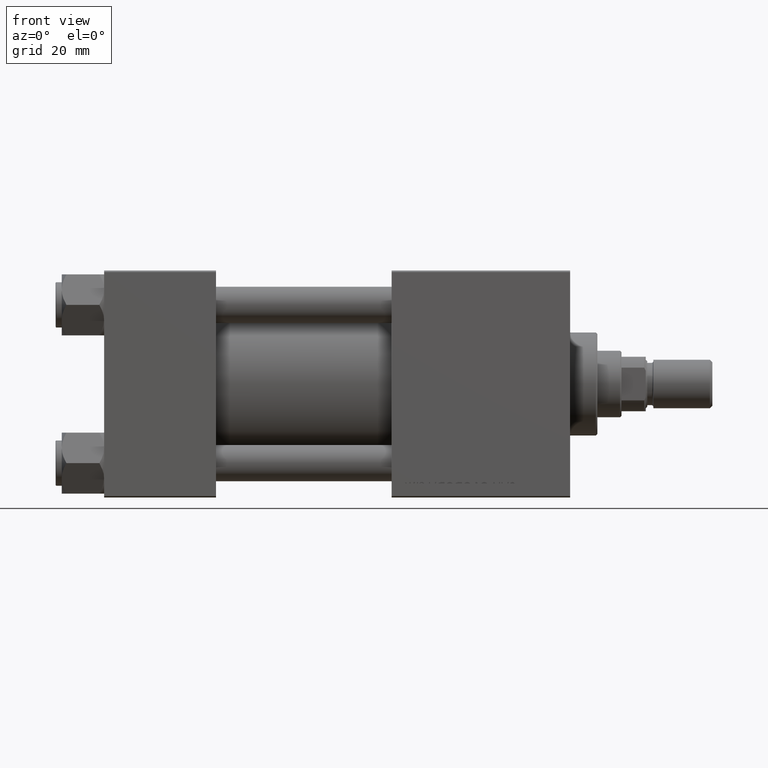
[diagram: clean part render]
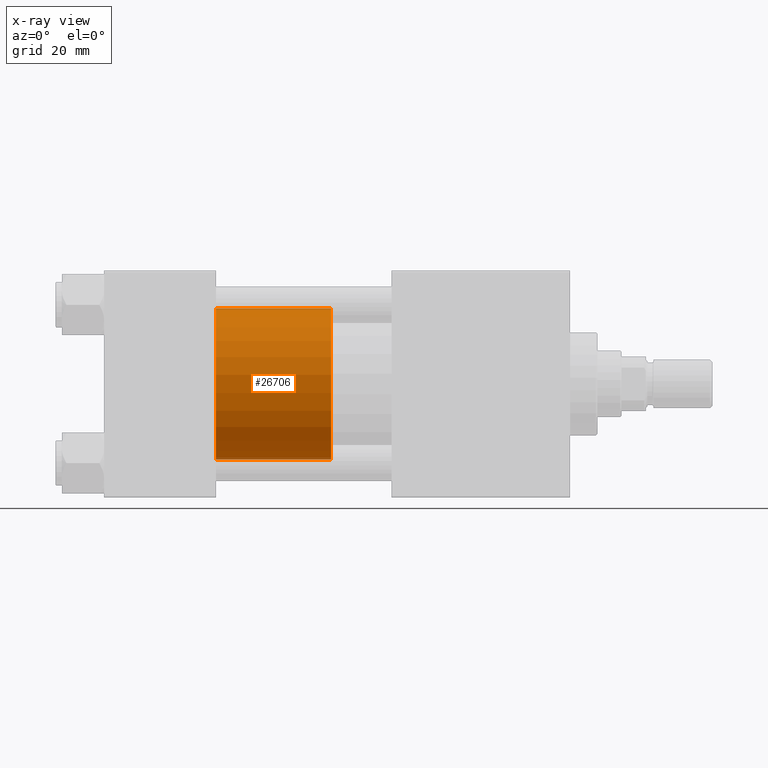
[diagram: x-ray — body ghosted, one internal face saturated and labeled with its STEP entity id]
A machine part, front view, then the same camera in x-ray: the body is ghosted and one INTERNAL B-rep face — a face not visible from any outside direction — is saturated and labeled: STEP entity #26706.
In plain terms, the highlighted cylindrical surface (partial cylindrical patch) has radius 25 mm, axis along (-1, 0, 0).
Its self-contained STEP definition (entity closure, byte-faithful):
#489 = VECTOR ( 'NONE', #8300, 1000.000000000000000 ) ;
#2291 = CYLINDRICAL_SURFACE ( 'NONE', #23566, 25.00000000000000000 ) ;
#3394 = EDGE_CURVE ( 'NONE', #47411, #23360, #13248, .T. ) ;
#5631 = VECTOR ( 'NONE', #16820, 1000.000000000000000 ) ;
#7115 = AXIS2_PLACEMENT_3D ( 'NONE', #20159, #15593, #50413 ) ;
#8300 = DIRECTION ( 'NONE',  ( -0.000000000000000000, -0.000000000000000000, -1.000000000000000000 ) ) ;
#8579 = EDGE_LOOP ( 'NONE', ( #20673, #22953, #36476, #25598 ) ) ;
#10439 = CARTESIAN_POINT ( 'NONE',  ( -25.00000000000000000, 0.000000000000000000, 0.000000000000000000 ) ) ;
#12724 = DIRECTION ( 'NONE',  ( 1.000000000000000000, 0.000000000000000000, 0.000000000000000000 ) ) ;
#13248 = CIRCLE ( 'NONE', #42706, 25.00000000000000000 ) ;
#13812 = FACE_OUTER_BOUND ( 'NONE', #8579, .T. ) ;
#15593 = DIRECTION ( 'NONE',  ( 0.000000000000000000, 0.000000000000000000, 1.000000000000000000 ) ) ;
#16820 = DIRECTION ( 'NONE',  ( -0.000000000000000000, -0.000000000000000000, -1.000000000000000000 ) ) ;
#17407 = DIRECTION ( 'NONE',  ( -1.000000000000000000, 0.000000000000000000, 0.000000000000000000 ) ) ;
#18894 = EDGE_CURVE ( 'NONE', #41666, #24595, #29148, .T. ) ;
#20159 = CARTESIAN_POINT ( 'NONE',  ( 0.000000000000000000, 0.000000000000000000, 38.00000000000000000 ) ) ;
#20673 = ORIENTED_EDGE ( 'NONE', *, *, #18894, .F. ) ;
#22610 = CARTESIAN_POINT ( 'NONE',  ( 25.00000000000000000, 3.061616997868383043E-15, 38.00000000000000000 ) ) ;
#22953 = ORIENTED_EDGE ( 'NONE', *, *, #46109, .T. ) ;
#23360 = VERTEX_POINT ( 'NONE', #10439 ) ;
#23483 = CARTESIAN_POINT ( 'NONE',  ( -25.00000000000000000, 0.000000000000000000, 38.00000000000000000 ) ) ;
#23566 = AXIS2_PLACEMENT_3D ( 'NONE', #25846, #29156, #17407 ) ;
#23650 = CARTESIAN_POINT ( 'NONE',  ( -25.00000000000000000, 0.000000000000000000, 38.00000000000000000 ) ) ;
#24595 = VERTEX_POINT ( 'NONE', #23650 ) ;
#25598 = ORIENTED_EDGE ( 'NONE', *, *, #28361, .F. ) ;
#25846 = CARTESIAN_POINT ( 'NONE',  ( 0.000000000000000000, 0.000000000000000000, 38.00000000000000000 ) ) ;
#26706 = ADVANCED_FACE ( 'NONE', ( #13812 ), #2291, .T. ) ;
#28361 = EDGE_CURVE ( 'NONE', #24595, #23360, #43728, .T. ) ;
#29148 = CIRCLE ( 'NONE', #7115, 25.00000000000000000 ) ;
#29156 = DIRECTION ( 'NONE',  ( -0.000000000000000000, -0.000000000000000000, -1.000000000000000000 ) ) ;
#32144 = CARTESIAN_POINT ( 'NONE',  ( 0.000000000000000000, 0.000000000000000000, 0.000000000000000000 ) ) ;
#36476 = ORIENTED_EDGE ( 'NONE', *, *, #3394, .T. ) ;
#37974 = CARTESIAN_POINT ( 'NONE',  ( 25.00000000000000000, 3.061616997868383043E-15, 0.000000000000000000 ) ) ;
#41666 = VERTEX_POINT ( 'NONE', #22610 ) ;
#42706 = AXIS2_PLACEMENT_3D ( 'NONE', #32144, #47816, #12724 ) ;
#43402 = CARTESIAN_POINT ( 'NONE',  ( 25.00000000000000000, 3.061616997868383043E-15, 38.00000000000000000 ) ) ;
#43728 = LINE ( 'NONE', #23483, #5631 ) ;
#46109 = EDGE_CURVE ( 'NONE', #41666, #47411, #47235, .T. ) ;
#47235 = LINE ( 'NONE', #43402, #489 ) ;
#47411 = VERTEX_POINT ( 'NONE', #37974 ) ;
#47816 = DIRECTION ( 'NONE',  ( 0.000000000000000000, 0.000000000000000000, 1.000000000000000000 ) ) ;
#50413 = DIRECTION ( 'NONE',  ( 1.000000000000000000, 0.000000000000000000, 0.000000000000000000 ) ) ;